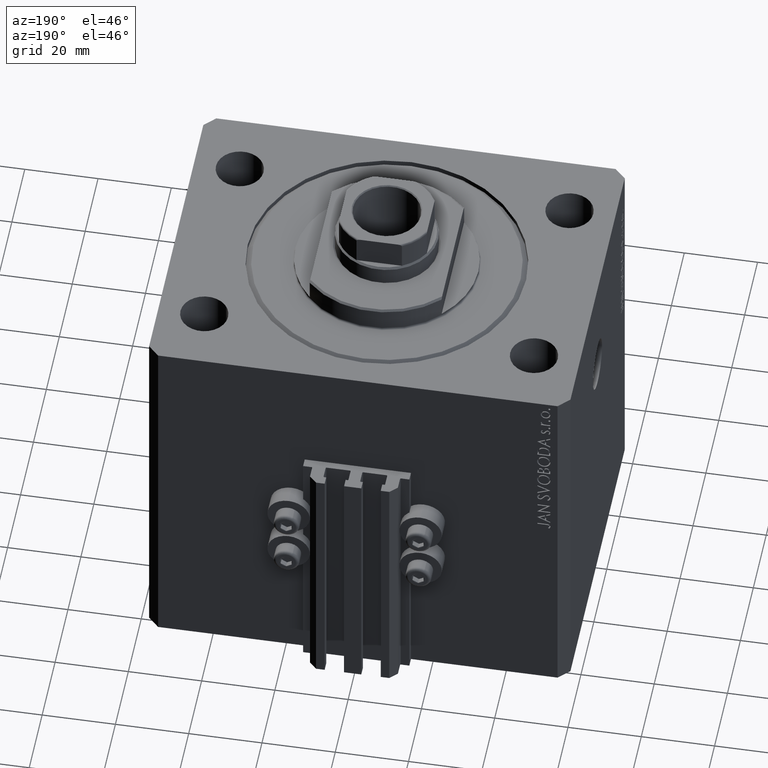
[diagram: clean part render]
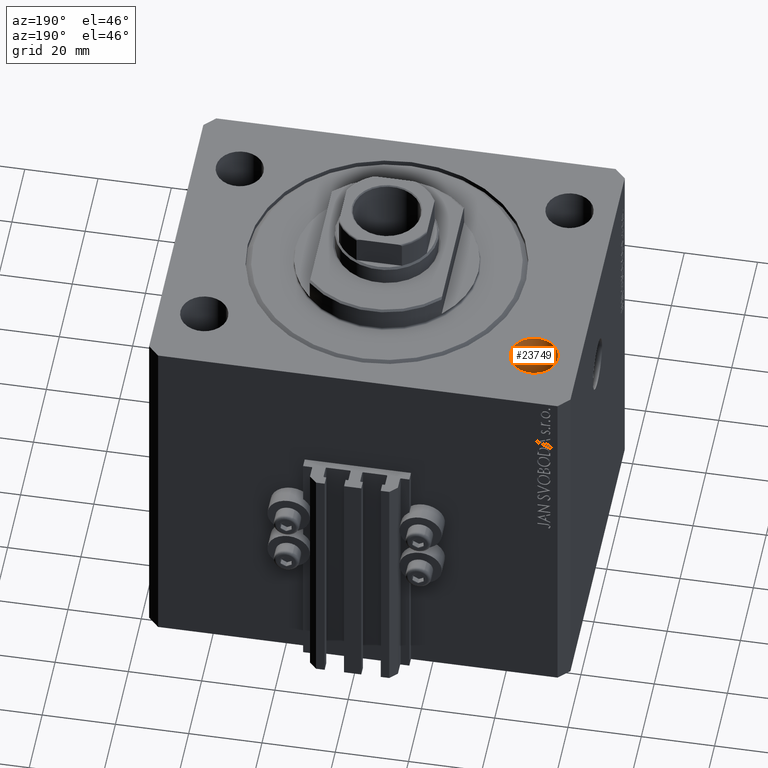
[diagram: same view with one face highlighted and labeled with its STEP entity id]
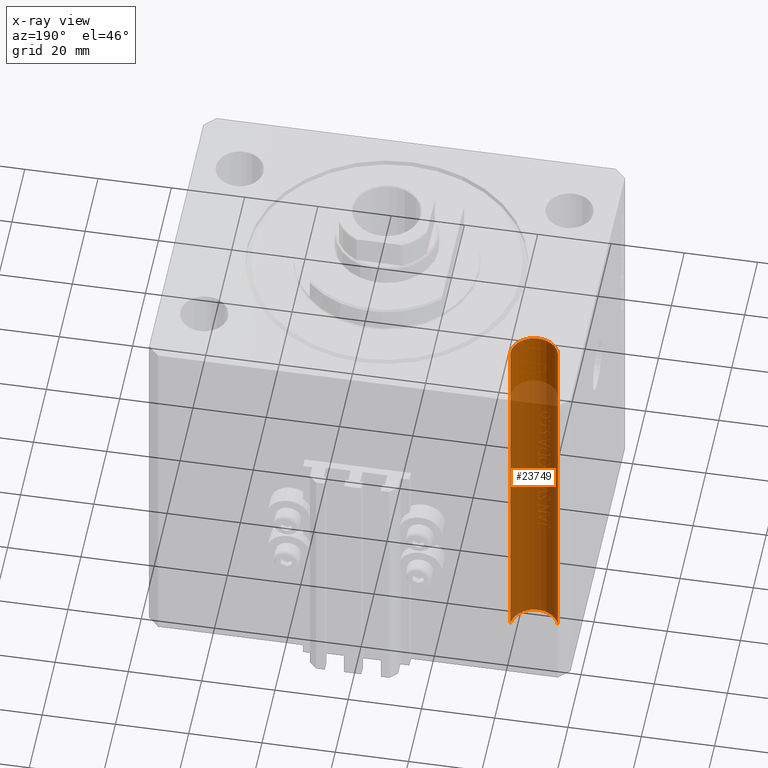
[diagram: x-ray of the same camera — body ghosted, the highlighted face saturated]
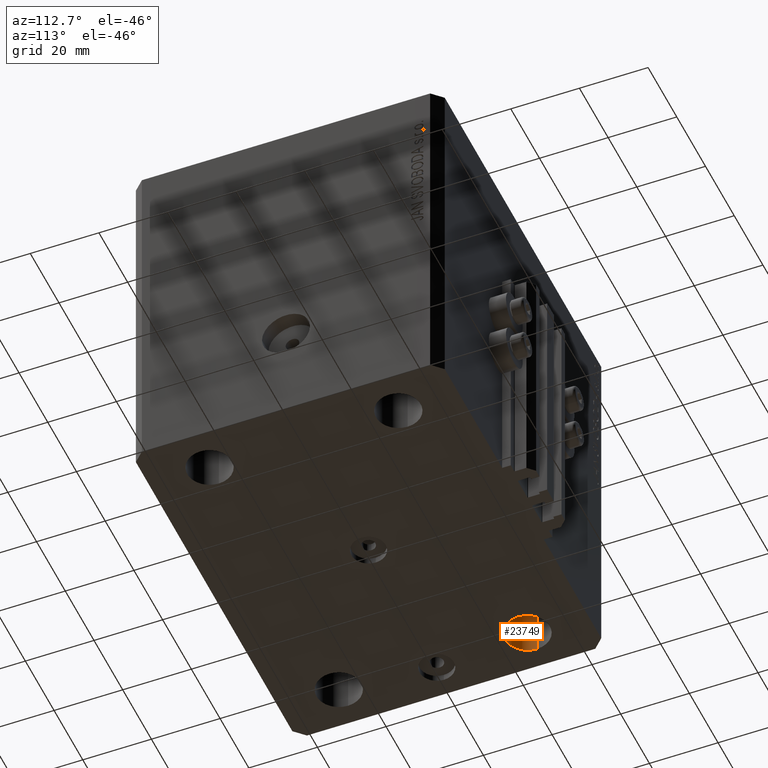
[diagram: same view with one face highlighted and labeled with its STEP entity id]
A machine part, auxiliary view. The second image highlights one B-rep face of the part: STEP entity #23749.
The next image is the same camera in x-ray: the body ghosted, the highlighted face saturated — about 84% of this face is hidden behind the body in this view.
A second angle (auxiliary view) of the same face is appended — the face is thin or edge-on in the first view.
In plain terms, the highlighted cylindrical surface (edge-blend (fillet) strip) has radius 6.5 mm, axis along (0, 0, 1).
Its self-contained STEP definition (entity closure, byte-faithful):
#1154 = AXIS2_PLACEMENT_3D ( 'NONE', #6570, #6801, #21172 ) ;
#1646 = ORIENTED_EDGE ( 'NONE', *, *, #43698, .T. ) ;
#3099 = LINE ( 'NONE', #28232, #34292 ) ;
#5001 = EDGE_LOOP ( 'NONE', ( #38479, #1646, #22878, #42652 ) ) ;
#6570 = CARTESIAN_POINT ( 'NONE',  ( -45.00000000000000000, 27.49999999999999645, -123.3847763108502278 ) ) ;
#6684 = DIRECTION ( 'NONE',  ( -0.000000000000000000, -0.000000000000000000, 1.000000000000000000 ) ) ;
#6801 = DIRECTION ( 'NONE',  ( -0.000000000000000000, -0.000000000000000000, 1.000000000000000000 ) ) ;
#7395 = CARTESIAN_POINT ( 'NONE',  ( -45.00000000000000000, 27.49999999999999645, 0.000000000000000000 ) ) ;
#7738 = CIRCLE ( 'NONE', #36806, 6.499999999999999112 ) ;
#10562 = VERTEX_POINT ( 'NONE', #42134 ) ;
#11493 = VECTOR ( 'NONE', #44741, 1000.000000000000000 ) ;
#12202 = CARTESIAN_POINT ( 'NONE',  ( -51.50000000000000000, 27.49999999999999645, -105.0000000000000000 ) ) ;
#12703 = VERTEX_POINT ( 'NONE', #12202 ) ;
#14435 = FACE_OUTER_BOUND ( 'NONE', #5001, .T. ) ;
#14607 = EDGE_CURVE ( 'NONE', #18585, #12703, #36088, .T. ) ;
#16119 = DIRECTION ( 'NONE',  ( -0.000000000000000000, -0.000000000000000000, -1.000000000000000000 ) ) ;
#16852 = CARTESIAN_POINT ( 'NONE',  ( -38.50000000000000000, 27.49999999999999645, -105.0000000000000000 ) ) ;
#18585 = VERTEX_POINT ( 'NONE', #16852 ) ;
#19955 = CARTESIAN_POINT ( 'NONE',  ( -45.00000000000000000, 27.49999999999999645, -105.0000000000000000 ) ) ;
#21172 = DIRECTION ( 'NONE',  ( 1.000000000000000000, 0.000000000000000000, 0.000000000000000000 ) ) ;
#22878 = ORIENTED_EDGE ( 'NONE', *, *, #44404, .T. ) ;
#22927 = LINE ( 'NONE', #26762, #11493 ) ;
#23749 = ADVANCED_FACE ( 'NONE', ( #14435 ), #32879, .F. ) ;
#25199 = VERTEX_POINT ( 'NONE', #41810 ) ;
#26762 = CARTESIAN_POINT ( 'NONE',  ( -51.50000000000000000, 27.49999999999999645, -123.3847763108502278 ) ) ;
#28232 = CARTESIAN_POINT ( 'NONE',  ( -38.50000000000000000, 27.49999999999999645, -123.3847763108502278 ) ) ;
#30968 = DIRECTION ( 'NONE',  ( 1.000000000000000000, 0.000000000000000000, 0.000000000000000000 ) ) ;
#32879 = CYLINDRICAL_SURFACE ( 'NONE', #1154, 6.499999999999999112 ) ;
#34292 = VECTOR ( 'NONE', #6684, 1000.000000000000000 ) ;
#36088 = CIRCLE ( 'NONE', #39920, 6.499999999999999112 ) ;
#36806 = AXIS2_PLACEMENT_3D ( 'NONE', #7395, #40449, #40219 ) ;
#38204 = EDGE_CURVE ( 'NONE', #18585, #10562, #3099, .T. ) ;
#38479 = ORIENTED_EDGE ( 'NONE', *, *, #14607, .T. ) ;
#39920 = AXIS2_PLACEMENT_3D ( 'NONE', #19955, #16119, #30968 ) ;
#40219 = DIRECTION ( 'NONE',  ( 1.000000000000000000, 0.000000000000000000, 0.000000000000000000 ) ) ;
#40449 = DIRECTION ( 'NONE',  ( 0.000000000000000000, 0.000000000000000000, 1.000000000000000000 ) ) ;
#41810 = CARTESIAN_POINT ( 'NONE',  ( -51.50000000000000000, 27.49999999999999645, 0.000000000000000000 ) ) ;
#42134 = CARTESIAN_POINT ( 'NONE',  ( -38.50000000000000000, 27.49999999999999645, 0.000000000000000000 ) ) ;
#42652 = ORIENTED_EDGE ( 'NONE', *, *, #38204, .F. ) ;
#43698 = EDGE_CURVE ( 'NONE', #12703, #25199, #22927, .T. ) ;
#44404 = EDGE_CURVE ( 'NONE', #25199, #10562, #7738, .T. ) ;
#44741 = DIRECTION ( 'NONE',  ( -0.000000000000000000, -0.000000000000000000, 1.000000000000000000 ) ) ;